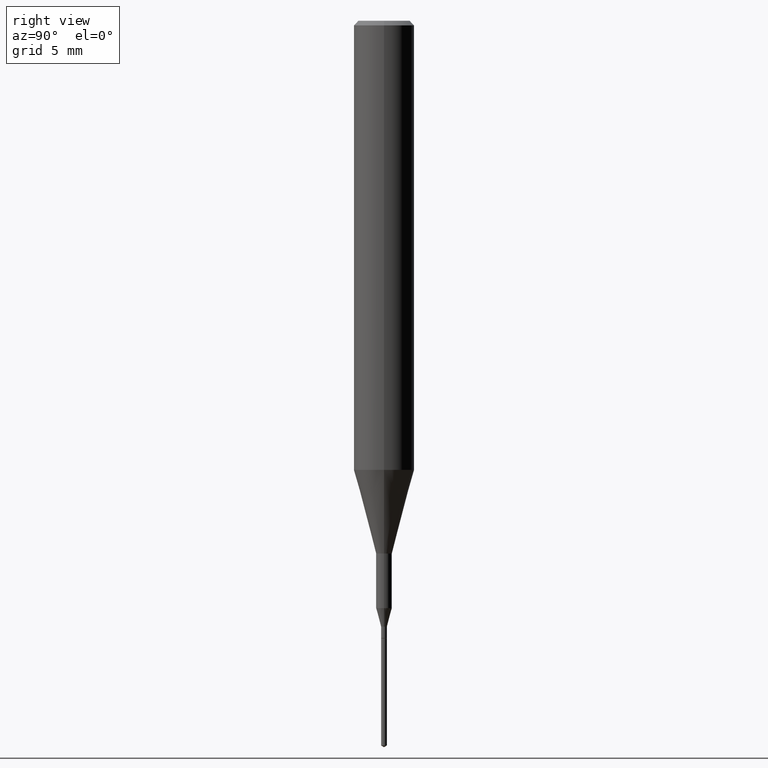
[diagram: clean part render]
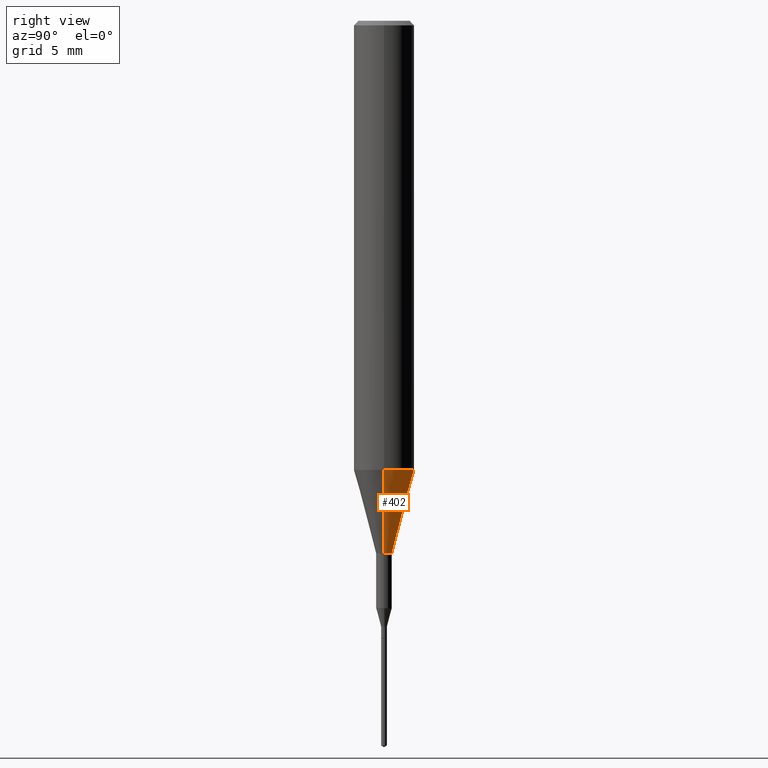
[diagram: same view with one face highlighted and labeled with its STEP entity id]
A machine part, right view. The second image highlights one B-rep face of the part: STEP entity #402.
In plain terms, the highlighted conical surface has half-angle 15 deg.
Its self-contained STEP definition (entity closure, byte-faithful):
#8 = EDGE_CURVE ( 'NONE', #190, #219, #488, .T. ) ;
#28 = VERTEX_POINT ( 'NONE', #100 ) ;
#43 = CARTESIAN_POINT ( 'NONE',  ( 2.267909797027042920E-29, -3.237974131778804114E-15, -0.9273926501499395458 ) ) ;
#55 = LINE ( 'NONE', #556, #195 ) ;
#83 = CARTESIAN_POINT ( 'NONE',  ( -0.06250000000000011102, -2.793884921928740709E-15, -0.9273926501499395458 ) ) ;
#85 = AXIS2_PLACEMENT_3D ( 'NONE', #349, #526, #122 ) ;
#87 = ORIENTED_EDGE ( 'NONE', *, *, #8, .T. ) ;
#100 = CARTESIAN_POINT ( 'NONE',  ( 0.06250000000000011102, -3.674409299134196572E-15, -0.9273926501499395458 ) ) ;
#110 = AXIS2_PLACEMENT_3D ( 'NONE', #43, #410, #588 ) ;
#113 = CARTESIAN_POINT ( 'NONE',  ( 0.01624999999999999709, -3.954102616239861778E-15, -1.100000000000000089 ) ) ;
#122 = DIRECTION ( 'NONE',  ( 1.000000000000000000, -6.982962677686265922E-15, 0.000000000000000000 ) ) ;
#141 = CARTESIAN_POINT ( 'NONE',  ( 2.690015686803650369E-29, -3.840629472727460101E-15, -1.100000000000000089 ) ) ;
#145 = DIRECTION ( 'NONE',  ( 1.000000000000000000, -6.982962677686259611E-15, 0.000000000000000000 ) ) ;
#167 = FACE_OUTER_BOUND ( 'NONE', #313, .T. ) ;
#190 = VERTEX_POINT ( 'NONE', #113 ) ;
#195 = VECTOR ( 'NONE', #425, 39.37007874015748143 ) ;
#202 = LINE ( 'NONE', #514, #302 ) ;
#209 = DIRECTION ( 'NONE',  ( 0.2588190451025214611, 1.565188264969620982E-15, 0.9659258262890679791 ) ) ;
#219 = VERTEX_POINT ( 'NONE', #380 ) ;
#232 = EDGE_CURVE ( 'NONE', #219, #368, #55, .T. ) ;
#238 = AXIS2_PLACEMENT_3D ( 'NONE', #141, #460, #145 ) ;
#240 = EDGE_CURVE ( 'NONE', #190, #28, #202, .T. ) ;
#262 = ORIENTED_EDGE ( 'NONE', *, *, #240, .F. ) ;
#302 = VECTOR ( 'NONE', #209, 39.37007874015748143 ) ;
#313 = EDGE_LOOP ( 'NONE', ( #87, #370, #489, #262 ) ) ;
#329 = CIRCLE ( 'NONE', #110, 0.06250000000000011102 ) ;
#349 = CARTESIAN_POINT ( 'NONE',  ( 2.267909797027042920E-29, -3.237974131778804114E-15, -0.9273926501499395458 ) ) ;
#368 = VERTEX_POINT ( 'NONE', #83 ) ;
#370 = ORIENTED_EDGE ( 'NONE', *, *, #232, .T. ) ;
#380 = CARTESIAN_POINT ( 'NONE',  ( -0.01624999999999999709, -3.921992392279115415E-15, -1.100000000000000089 ) ) ;
#402 = ADVANCED_FACE ( 'NONE', ( #167 ), #517, .T. ) ;
#410 = DIRECTION ( 'NONE',  ( -2.445468806185136597E-29, 3.491481338843145583E-15, 1.000000000000000000 ) ) ;
#425 = DIRECTION ( 'NONE',  ( -0.2588190451025214611, 5.211531920934550253E-15, 0.9659258262890679791 ) ) ;
#460 = DIRECTION ( 'NONE',  ( -2.445468806185136597E-29, 3.491481338843145583E-15, 1.000000000000000000 ) ) ;
#488 = CIRCLE ( 'NONE', #238, 0.01624999999999999709 ) ;
#489 = ORIENTED_EDGE ( 'NONE', *, *, #523, .F. ) ;
#514 = CARTESIAN_POINT ( 'NONE',  ( 0.06250000000000011102, -3.674409299134196572E-15, -0.9273926501499395458 ) ) ;
#517 = CONICAL_SURFACE ( 'NONE', #85, 0.06250000000000011102, 0.2617993877991501850 ) ;
#523 = EDGE_CURVE ( 'NONE', #28, #368, #329, .T. ) ;
#526 = DIRECTION ( 'NONE',  ( -2.445468806185136597E-29, 3.491481338843145583E-15, 1.000000000000000000 ) ) ;
#556 = CARTESIAN_POINT ( 'NONE',  ( -0.06250000000000011102, -2.793884921928740709E-15, -0.9273926501499395458 ) ) ;
#588 = DIRECTION ( 'NONE',  ( 1.000000000000000000, -6.982962677686265922E-15, 0.000000000000000000 ) ) ;